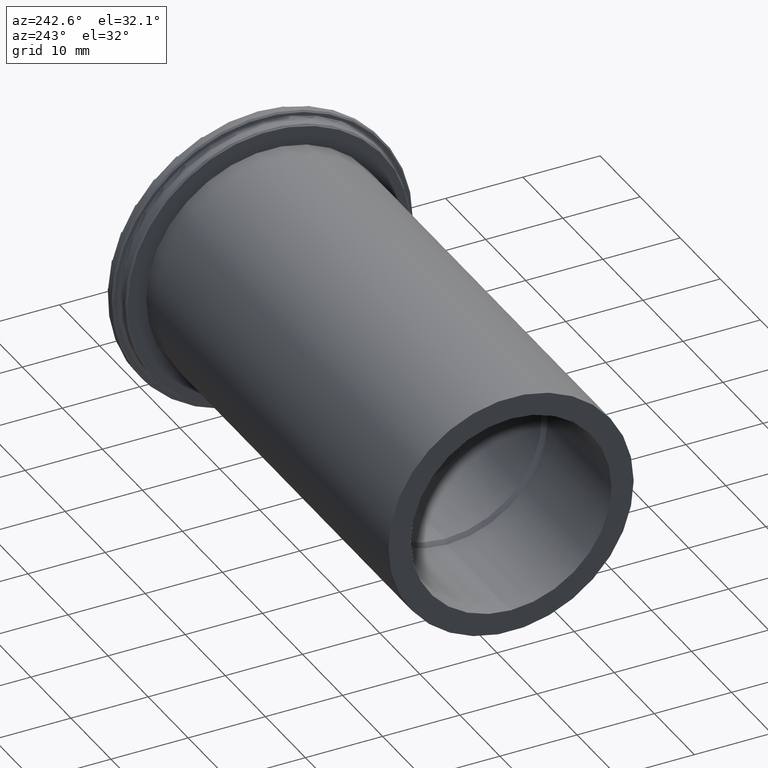
[diagram: clean part render]
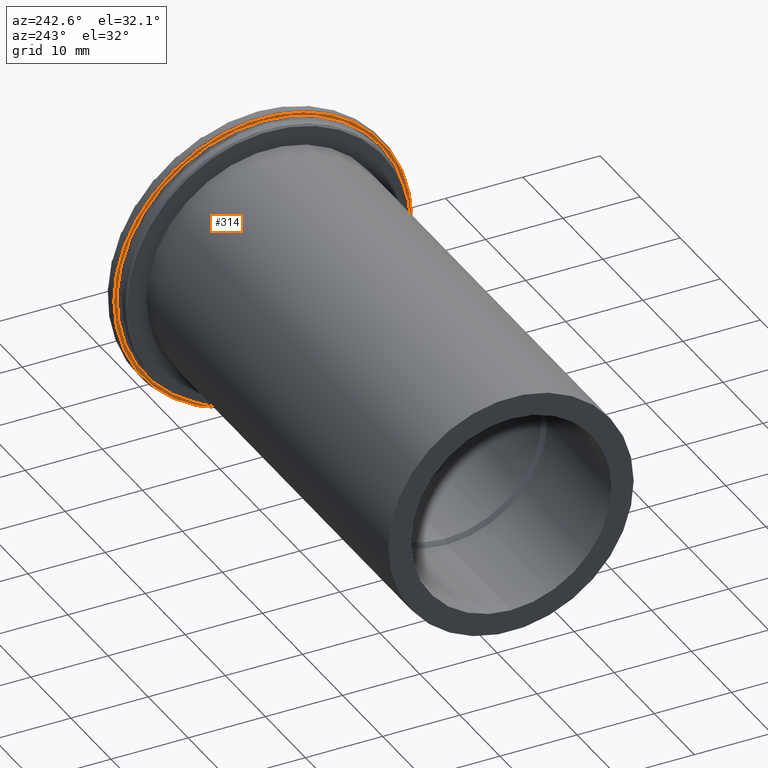
[diagram: same view with one face highlighted and labeled with its STEP entity id]
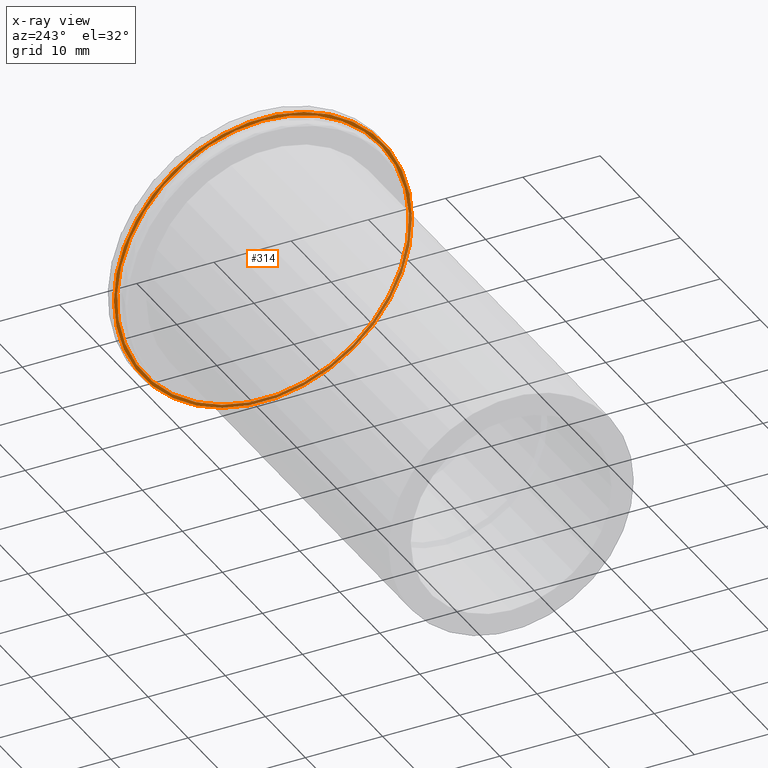
[diagram: x-ray of the same camera — body ghosted, the highlighted face saturated]
A machine part, auxiliary view. The second image highlights one B-rep face of the part: STEP entity #314.
The next image is the same camera in x-ray: the body ghosted, the highlighted face saturated — about 31% of this face is hidden behind the body in this view.
In plain terms, the highlighted planar face has unit normal (-1, 0, 0).
Its self-contained STEP definition (entity closure, byte-faithful):
#87=FACE_BOUND('',#123,.T.);
#91=PLANE('',#365);
#106=FACE_OUTER_BOUND('',#122,.T.);
#122=EDGE_LOOP('',(#268));
#123=EDGE_LOOP('',(#269));
#164=CIRCLE('',#361,19.3);
#167=CIRCLE('',#366,18.9);
#190=VERTEX_POINT('',#553);
#193=VERTEX_POINT('',#563);
#217=EDGE_CURVE('',#190,#190,#164,.T.);
#221=EDGE_CURVE('',#193,#193,#167,.T.);
#268=ORIENTED_EDGE('',*,*,#217,.F.);
#269=ORIENTED_EDGE('',*,*,#221,.F.);
#314=ADVANCED_FACE('',(#106,#87),#91,.T.);
#361=AXIS2_PLACEMENT_3D('',#555,#439,#440);
#365=AXIS2_PLACEMENT_3D('',#562,#448,#449);
#366=AXIS2_PLACEMENT_3D('',#564,#450,#451);
#439=DIRECTION('center_axis',(1.,0.,0.));
#440=DIRECTION('ref_axis',(0.,-1.,0.));
#448=DIRECTION('center_axis',(-1.,0.,0.));
#449=DIRECTION('ref_axis',(0.,0.,1.));
#450=DIRECTION('center_axis',(-1.,0.,0.));
#451=DIRECTION('ref_axis',(0.,-1.,1.83697019872103E-16));
#553=CARTESIAN_POINT('',(-1.5,19.3,2.36356832235439E-15));
#555=CARTESIAN_POINT('Origin',(-1.5,0.,0.));
#562=CARTESIAN_POINT('Origin',(-1.5,19.5,0.));
#563=CARTESIAN_POINT('',(-1.5,-2.3145824503885E-15,18.9));
#564=CARTESIAN_POINT('Origin',(-1.5,0.,0.));